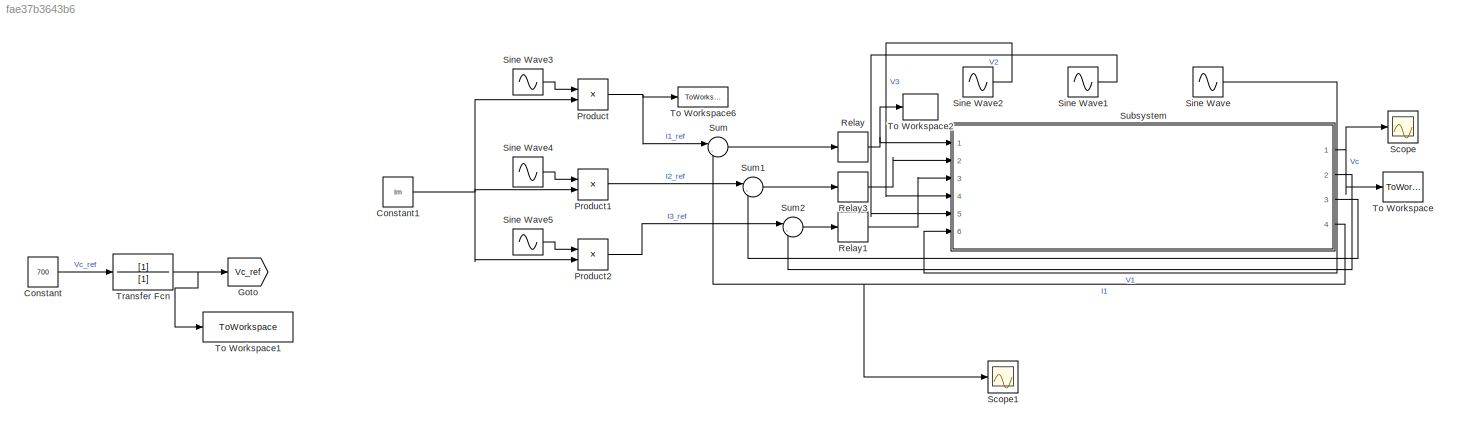
MODEL slx_fae37b3643b6
KIND model
CONFIG AbsTol = auto
CONFIG EnableMultiTasking = off
CONFIG FixedStep = 1e-6
CONFIG MaxStep = auto
CONFIG MinStep = auto
CONFIG RelTol = 1e-3
CONFIG SampleTimeConstraint = Unconstrained
CONFIG Solver = ode8
CONFIG SolverName = ode8
CONFIG StartTime = 0.0
CONFIG StopTime = Ts
BLOCK [Constant] Constant
  Value = 700
BLOCK [Constant] Constant1
  Value = Im
BLOCK [Goto] Goto
  GotoTag = Vc_ref
BLOCK [Product] Product
  InputSameDT = off
  OutDataTypeStr = Inherit: Inherit via internal rule
  Ports = [2, 1]
  RndMeth = Floor
  SaturateOnIntegerOverflow = off
BLOCK [Product] Product1
  InputSameDT = off
  OutDataTypeStr = Inherit: Inherit via internal rule
  Ports = [2, 1]
  RndMeth = Floor
  SaturateOnIntegerOverflow = off
BLOCK [Product] Product2
  InputSameDT = off
  OutDataTypeStr = Inherit: Inherit via internal rule
  Ports = [2, 1]
  RndMeth = Floor
  SaturateOnIntegerOverflow = off
BLOCK [Relay] Relay
  InputProcessing = Elements as channels (sample based)
  OffOutputValue = S_off
  OffSwitchValue = eps_off
  OnOutputValue = S_on
  OnSwitchValue = eps_on
BLOCK [Relay] Relay1
  InputProcessing = Elements as channels (sample based)
  OffOutputValue = S_off
  OffSwitchValue = eps_off
  OnOutputValue = S_on
  OnSwitchValue = eps_on
BLOCK [Relay] Relay3
  InputProcessing = Elements as channels (sample based)
  OffOutputValue = S_off
  OffSwitchValue = eps_off
  OnOutputValue = S_on
  OnSwitchValue = eps_on
BLOCK [Scope] Scope
  Floating = off
  NumInputPorts = 1
  Ports = [1]
  ScopeSpecificationString = Simulink.scopes.TimeScopeBlockCfg('CurrentConfiguration', extmgr.ConfigurationSet(extmgr.Configuration('Core','General UI',true),extmgr.Configuration('Core','Source UI',true),extmgr.Configuration('Sources','WiredSimulink',true,'DataLoggingVariableName','ScopeData1'),extmgr.Configuration('Visuals','Time Domain',true,'SerializedDisplays',{struct('MinYLimReal','485.67506','MaxYLimReal','733.14242','Y...<+1403ch>
BLOCK [Scope] Scope1
  Floating = off
  NumInputPorts = 1
  Ports = [1]
  ScopeSpecificationString = Simulink.scopes.TimeScopeBlockCfg('CurrentConfiguration', extmgr.ConfigurationSet(extmgr.Configuration('Core','General UI',true,'FigureColor',[0.8 0.8 0.8]),extmgr.Configuration('Core','Source UI',true),extmgr.Configuration('Sources','WiredSimulink',true,'DataLoggingVariableName','ScopeData1'),extmgr.Configuration('Visuals','Time Domain',true,'SerializedDisplays',{struct('MinYLimReal','-71.30214',...<+1928ch>
BLOCK [Sin] Sine Wave
  Amplitude = V*sqrt(2)
  Frequency = 2*50*pi
  Ports = [0, 1]
  SampleTime = 0
BLOCK [Sin] Sine Wave1
  Amplitude = V*sqrt(2)
  Frequency = 2*50*pi
  Phase = -2*pi/3
  Ports = [0, 1]
  SampleTime = 0
BLOCK [Sin] Sine Wave2
  Amplitude = V*sqrt(2)
  Frequency = 2*50*pi
  Phase = -4*pi/3
  Ports = [0, 1]
  SampleTime = 0
BLOCK [Sin] Sine Wave3
  Frequency = 2*50*pi
  Ports = [0, 1]
  SampleTime = 0
BLOCK [Sin] Sine Wave4
  Frequency = 2*50*pi
  Phase = -2*pi/3
  Ports = [0, 1]
  SampleTime = 0
BLOCK [Sin] Sine Wave5
  Frequency = 2*50*pi
  Phase = -4*pi/3
  Ports = [0, 1]
  SampleTime = 0
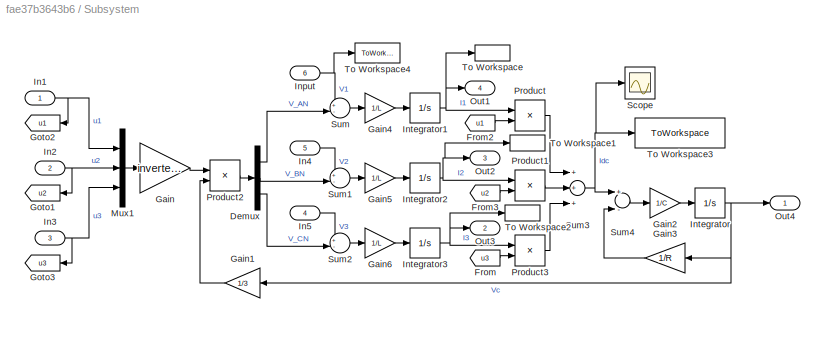
BLOCK [SubSystem] Subsystem
  Ports = [6, 4]
  RequestExecContextInheritance = off
BLOCK [Demux] Subsystem/Demux
  DisplayOption = bar
  Outputs = 3
  Ports = [1, 3]
BLOCK [From] Subsystem/From
  GotoTag = u3
BLOCK [From] Subsystem/From2
  GotoTag = u1
BLOCK [From] Subsystem/From3
  GotoTag = u2
BLOCK [Gain] Subsystem/Gain
  Gain = inverter_matrix
  Multiplication = Matrix(K*u)
  OutDataTypeStr = Inherit: Inherit via internal rule
  ParamDataTypeStr = Inherit: Inherit via internal rule
  SaturateOnIntegerOverflow = off
BLOCK [Gain] Subsystem/Gain1
  Gain = 1/3
  OutDataTypeStr = Inherit: Inherit via internal rule
  ParamDataTypeStr = Inherit: Inherit via internal rule
  SaturateOnIntegerOverflow = off
BLOCK [Gain] Subsystem/Gain2
  Gain = 1/C
  OutDataTypeStr = Inherit: Inherit via internal rule
  ParamDataTypeStr = Inherit: Inherit via internal rule
  SaturateOnIntegerOverflow = off
BLOCK [Gain] Subsystem/Gain3
  Gain = 1/R
  OutDataTypeStr = Inherit: Inherit via internal rule
  ParamDataTypeStr = Inherit: Inherit via internal rule
  SaturateOnIntegerOverflow = off
BLOCK [Gain] Subsystem/Gain4
  Gain = 1/L
  OutDataTypeStr = Inherit: Inherit via internal rule
  ParamDataTypeStr = Inherit: Inherit via internal rule
  SaturateOnIntegerOverflow = off
BLOCK [Gain] Subsystem/Gain5
  Gain = 1/L
  OutDataTypeStr = Inherit: Inherit via internal rule
  ParamDataTypeStr = Inherit: Inherit via internal rule
  SaturateOnIntegerOverflow = off
BLOCK [Gain] Subsystem/Gain6
  Gain = 1/L
  OutDataTypeStr = Inherit: Inherit via internal rule
  ParamDataTypeStr = Inherit: Inherit via internal rule
  SaturateOnIntegerOverflow = off
BLOCK [Goto] Subsystem/Goto1
  GotoTag = u2
BLOCK [Goto] Subsystem/Goto2
  GotoTag = u1
BLOCK [Goto] Subsystem/Goto3
  GotoTag = u3
BLOCK [Inport] Subsystem/In1
  IconDisplay = Signal name
BLOCK [Inport] Subsystem/In2
  IconDisplay = Signal name
  Port = 2
BLOCK [Inport] Subsystem/In3
  IconDisplay = Signal name
  Port = 3
BLOCK [Inport] Subsystem/In4
  IconDisplay = Signal name
  Port = 5
BLOCK [Inport] Subsystem/In5
  IconDisplay = Signal name
  Port = 4
BLOCK [Inport] Subsystem/Input
  IconDisplay = Signal name
  Port = 6
BLOCK [Integrator] Subsystem/Integrator
  InitialCondition = sqrt(3*2)*V
  LowerSaturationLimit = 0
  Ports = [1, 1]
BLOCK [Integrator] Subsystem/Integrator1
  Ports = [1, 1]
BLOCK [Integrator] Subsystem/Integrator2
  Ports = [1, 1]
BLOCK [Integrator] Subsystem/Integrator3
  Ports = [1, 1]
BLOCK [Mux] Subsystem/Mux1
  DisplayOption = bar
  Inputs = 3
  Ports = [3, 1]
BLOCK [Outport] Subsystem/Out1
  IconDisplay = Signal name
  Port = 4
  VectorParamsAs1DForOutWhenUnconnected = on
BLOCK [Outport] Subsystem/Out2
  IconDisplay = Signal name
  Port = 3
  VectorParamsAs1DForOutWhenUnconnected = on
BLOCK [Outport] Subsystem/Out3
  IconDisplay = Signal name
  Port = 2
  VectorParamsAs1DForOutWhenUnconnected = on
BLOCK [Outport] Subsystem/Out4
  IconDisplay = Signal name
  VectorParamsAs1DForOutWhenUnconnected = on
BLOCK [Product] Subsystem/Product
  InputSameDT = off
  OutDataTypeStr = Inherit: Inherit via internal rule
  Ports = [2, 1]
  RndMeth = Floor
  SaturateOnIntegerOverflow = off
BLOCK [Product] Subsystem/Product1
  InputSameDT = off
  OutDataTypeStr = Inherit: Inherit via internal rule
  Ports = [2, 1]
  RndMeth = Floor
  SaturateOnIntegerOverflow = off
BLOCK [Product] Subsystem/Product2
  InputSameDT = off
  OutDataTypeStr = Inherit: Inherit via internal rule
  Ports = [2, 1]
  RndMeth = Floor
  SaturateOnIntegerOverflow = off
BLOCK [Product] Subsystem/Product3
  InputSameDT = off
  OutDataTypeStr = Inherit: Inherit via internal rule
  Ports = [2, 1]
  RndMeth = Floor
  SaturateOnIntegerOverflow = off
BLOCK [Scope] Subsystem/Scope
  Floating = off
  NumInputPorts = 1
  Ports = [1]
  ScopeSpecificationString = Simulink.scopes.TimeScopeBlockCfg('CurrentConfiguration', extmgr.ConfigurationSet(extmgr.Configuration('Core','General UI',true),extmgr.Configuration('Core','Source UI',true),extmgr.Configuration('Sources','WiredSimulink',true,'DataLoggingVariableName','ScopeData1'),extmgr.Configuration('Visuals','Time Domain',true,'SerializedDisplays',{struct('MinYLimReal','-124.3094','MaxYLimReal','152.27363','Y...<+1445ch>
BLOCK [Sum] Subsystem/Sum
  IconShape = round
  InputSameDT = off
  Inputs = +-|
  OutDataTypeStr = Inherit: Inherit via internal rule
  Ports = [2, 1]
  SaturateOnIntegerOverflow = off
BLOCK [Sum] Subsystem/Sum1
  IconShape = round
  InputSameDT = off
  Inputs = +-|
  OutDataTypeStr = Inherit: Inherit via internal rule
  Ports = [2, 1]
  SaturateOnIntegerOverflow = off
BLOCK [Sum] Subsystem/Sum2
  IconShape = round
  InputSameDT = off
  Inputs = +-|
  OutDataTypeStr = Inherit: Inherit via internal rule
  Ports = [2, 1]
  SaturateOnIntegerOverflow = off
BLOCK [Sum] Subsystem/Sum3
  InputSameDT = off
  Inputs = +++
  OutDataTypeStr = Inherit: Inherit via internal rule
  Ports = [3, 1]
  SaturateOnIntegerOverflow = off
BLOCK [Sum] Subsystem/Sum4
  InputSameDT = off
  Inputs = +-
  OutDataTypeStr = Inherit: Inherit via internal rule
  Ports = [2, 1]
  SaturateOnIntegerOverflow = off
BLOCK [ToWorkspace] Subsystem/To Workspace
  FixptAsFi = on
  MaxDataPoints = inf
  Ports = [1]
  SampleTime = -1
  Save2DSignal = 3-D array (concatenate along third dimension)
  SaveFormat = Timeseries
  VariableName = I1
BLOCK [ToWorkspace] Subsystem/To Workspace1
  FixptAsFi = on
  MaxDataPoints = inf
  Ports = [1]
  SampleTime = -1
  Save2DSignal = 3-D array (concatenate along third dimension)
  SaveFormat = Timeseries
  VariableName = I2
BLOCK [ToWorkspace] Subsystem/To Workspace2
  FixptAsFi = on
  MaxDataPoints = inf
  Ports = [1]
  SampleTime = -1
  Save2DSignal = 3-D array (concatenate along third dimension)
  SaveFormat = Timeseries
  VariableName = I3
BLOCK [ToWorkspace] Subsystem/To Workspace3
  FixptAsFi = on
  MaxDataPoints = inf
  Ports = [1]
  SampleTime = -1
  Save2DSignal = 3-D array (concatenate along third dimension)
  SaveFormat = Timeseries
  VariableName = Idc
BLOCK [ToWorkspace] Subsystem/To Workspace4
  FixptAsFi = on
  MaxDataPoints = inf
  Ports = [1]
  SampleTime = -1
  Save2DSignal = 3-D array (concatenate along third dimension)
  SaveFormat = Timeseries
  VariableName = V1
BLOCK [Sum] Sum
  IconShape = round
  InputSameDT = off
  Inputs = |-+
  OutDataTypeStr = Inherit: Inherit via internal rule
  Ports = [2, 1]
  SaturateOnIntegerOverflow = off
BLOCK [Sum] Sum1
  IconShape = round
  InputSameDT = off
  Inputs = |-+
  OutDataTypeStr = Inherit: Inherit via internal rule
  Ports = [2, 1]
  SaturateOnIntegerOverflow = off
BLOCK [Sum] Sum2
  IconShape = round
  InputSameDT = off
  Inputs = |-+
  OutDataTypeStr = Inherit: Inherit via internal rule
  Ports = [2, 1]
  SaturateOnIntegerOverflow = off
BLOCK [ToWorkspace] To Workspace
  FixptAsFi = on
  MaxDataPoints = inf
  Ports = [1]
  SampleTime = -1
  Save2DSignal = 3-D array (concatenate along third dimension)
  SaveFormat = Timeseries
  VariableName = Vc
BLOCK [ToWorkspace] To Workspace1
  FixptAsFi = on
  MaxDataPoints = inf
  Ports = [1]
  SampleTime = -1
  Save2DSignal = 3-D array (concatenate along third dimension)
  SaveFormat = Timeseries
  VariableName = Vc_ref
BLOCK [ToWorkspace] To Workspace2
  FixptAsFi = on
  MaxDataPoints = inf
  Ports = [1]
  SampleTime = -1
  Save2DSignal = 3-D array (concatenate along third dimension)
  SaveFormat = Timeseries
  VariableName = u1
BLOCK [ToWorkspace] To Workspace6
  FixptAsFi = on
  MaxDataPoints = inf
  Ports = [1]
  SampleTime = -1
  Save2DSignal = 3-D array (concatenate along third dimension)
  SaveFormat = Timeseries
  VariableName = I1_ref
BLOCK [TransferFcn] Transfer Fcn
  Denominator = [1]
NET Constant1:1 -> Product1:2, Product2:2, Product:2
LINE Constant:1 -> Transfer Fcn:1
LINE Product1:1 -> Sum1:1
LINE Product2:1 -> Sum2:1
NET Product:1 -> Sum:1, To Workspace6:1
LINE Relay1:1 -> Subsystem:3
LINE Relay3:1 -> Subsystem:2
NET Relay:1 -> Subsystem:1, To Workspace2:1
LINE Sine Wave1:1 -> Subsystem:5
LINE Sine Wave2:1 -> Subsystem:4
LINE Sine Wave3:1 -> Product:1
LINE Sine Wave4:1 -> Product1:1
LINE Sine Wave5:1 -> Product2:1
LINE Sine Wave:1 -> Subsystem:6
LINE Subsystem/Demux:1 -> Subsystem/Sum:2
LINE Subsystem/Demux:2 -> Subsystem/Sum1:2
LINE Subsystem/Demux:3 -> Subsystem/Sum2:2
LINE Subsystem/From2:1 -> Subsystem/Product:2
LINE Subsystem/From3:1 -> Subsystem/Product1:2
LINE Subsystem/From:1 -> Subsystem/Product3:2
LINE Subsystem/Gain1:1 -> Subsystem/Product2:2
LINE Subsystem/Gain2:1 -> Subsystem/Integrator:1
LINE Subsystem/Gain3:1 -> Subsystem/Sum4:2
LINE Subsystem/Gain4:1 -> Subsystem/Integrator1:1
LINE Subsystem/Gain5:1 -> Subsystem/Integrator2:1
LINE Subsystem/Gain6:1 -> Subsystem/Integrator3:1
LINE Subsystem/Gain:1 -> Subsystem/Product2:1
NET Subsystem/In1:1 -> Subsystem/Goto2:1, Subsystem/Mux1:1
NET Subsystem/In2:1 -> Subsystem/Goto1:1, Subsystem/Mux1:2
NET Subsystem/In3:1 -> Subsystem/Goto3:1, Subsystem/Mux1:3
LINE Subsystem/In4:1 -> Subsystem/Sum1:1
LINE Subsystem/In5:1 -> Subsystem/Sum2:1
NET Subsystem/Input:1 -> Subsystem/Sum:1, Subsystem/To Workspace4:1
NET Subsystem/Integrator1:1 -> Subsystem/Out1:1, Subsystem/Product:1, Subsystem/To Workspace:1
NET Subsystem/Integrator2:1 -> Subsystem/Out2:1, Subsystem/Product1:1, Subsystem/To Workspace1:1
NET Subsystem/Integrator3:1 -> Subsystem/Out3:1, Subsystem/Product3:1, Subsystem/To Workspace2:1
NET Subsystem/Integrator:1 -> Subsystem/Gain1:1, Subsystem/Gain3:1, Subsystem/Out4:1
LINE Subsystem/Mux1:1 -> Subsystem/Gain:1
LINE Subsystem/Product1:1 -> Subsystem/Sum3:2
LINE Subsystem/Product2:1 -> Subsystem/Demux:1
LINE Subsystem/Product3:1 -> Subsystem/Sum3:3
LINE Subsystem/Product:1 -> Subsystem/Sum3:1
LINE Subsystem/Sum1:1 -> Subsystem/Gain5:1
LINE Subsystem/Sum2:1 -> Subsystem/Gain6:1
NET Subsystem/Sum3:1 -> Subsystem/Scope:1, Subsystem/Sum4:1, Subsystem/To Workspace3:1
LINE Subsystem/Sum4:1 -> Subsystem/Gain2:1
LINE Subsystem/Sum:1 -> Subsystem/Gain4:1
NET Subsystem:1 -> Scope:1, To Workspace:1
LINE Subsystem:2 -> Sum2:2
LINE Subsystem:3 -> Sum1:2
NET Subsystem:4 -> Scope1:1, Sum:2
LINE Sum1:1 -> Relay3:1
LINE Sum2:1 -> Relay1:1
LINE Sum:1 -> Relay:1
NET Transfer Fcn:1 -> Goto:1, To Workspace1:1
note: NET lines group one-source signal fan-out (src -> all destinations, sorted); 1:1 wires keep LINE
